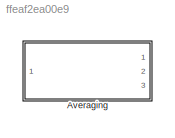
MODEL slx_ffeaf2ea00e9
KIND library
CONFIG AbsTol = auto
CONFIG FixedStep = auto
CONFIG MaxStep = auto
CONFIG MinStep = auto
CONFIG RelTol = 1e-3
CONFIG SampleTimeConstraint = Unconstrained
CONFIG Solver = ode45
CONFIG SolverMode = Auto
CONFIG SolverName = ode45
CONFIG StartTime = 0.0
CONFIG StopTime = 10.0
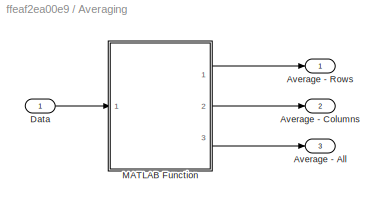
BLOCK [SubSystem] Averaging
  Ports = [1, 3]
  RequestExecContextInheritance = off
BLOCK [Outport] Averaging/Average - All
  IconDisplay = Port number
  Port = 3
BLOCK [Outport] Averaging/Average - Columns
  IconDisplay = Port number
  Port = 2
BLOCK [Outport] Averaging/Average - Rows
  IconDisplay = Port number
BLOCK [Inport] Averaging/Data
  IconDisplay = Port number
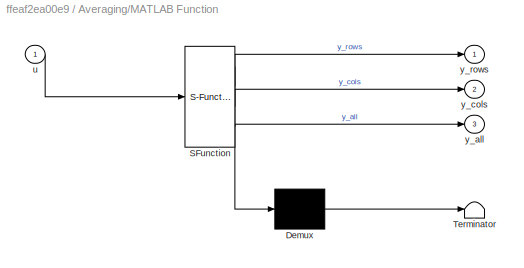
BLOCK [SubSystem] Averaging/MATLAB Function
  ErrorFcn = Stateflow.Translate.translate
  PermitHierarchicalResolution = ExplicitOnly
  Ports = [1, 3]
  RequestExecContextInheritance = off
  SFBlockType = MATLAB Function
  TreatAsAtomicUnit = on
BLOCK [Demux] Averaging/MATLAB Function/ Demux 
  Outputs = 1
  Ports = [1, 1]
BLOCK [S-Function] Averaging/MATLAB Function/ SFunction 
  EnableBusSupport = on
  FunctionName = sf_sfun
  PortCounts = [1 4]
  Ports = [1, 4]
  Tag = Stateflow S-Function lib_GenTools_Averaging 2
BLOCK [Terminator] Averaging/MATLAB Function/ Terminator 
BLOCK [Inport] Averaging/MATLAB Function/u
  IconDisplay = Port number
BLOCK [Outport] Averaging/MATLAB Function/y_all
  IconDisplay = Port number
  Port = 3
BLOCK [Outport] Averaging/MATLAB Function/y_cols
  IconDisplay = Port number
  Port = 2
BLOCK [Outport] Averaging/MATLAB Function/y_rows
  IconDisplay = Port number
CHART Averaging/MATLAB Function states=1 transitions=1
  STATE_LABEL 'eML_blk_kernel()'
  STATE_LABEL 'SCRIPT:\nfunction [y_rows, y_cols, y_all] = average(u)\n%#codegen\n\n[n,m] = size(u);\n\n%average rows\ny_rows = zeros(n,1);\nfor i = 1:n\n    y_rows(i) = sum(u(i,:))/m;\nend\n\n%average columns\ny_cols = zeros(1,m);\nfor j = 1:m\n    y_cols(j) = sum(u(:,j))/n;\nend\n    \n%average all   \nSUM = 0;\nfor i = 1:n\n    for j = 1:m\n        SUM = SUM + u(i,j);\n    end\nend\ny_all = SUM/(n*m);'
